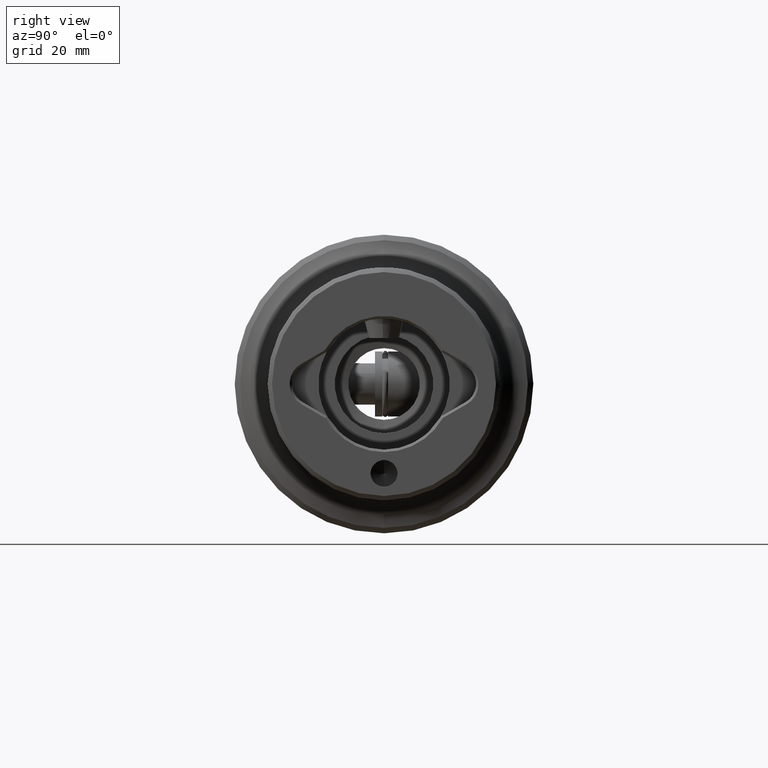
[diagram: clean part render]
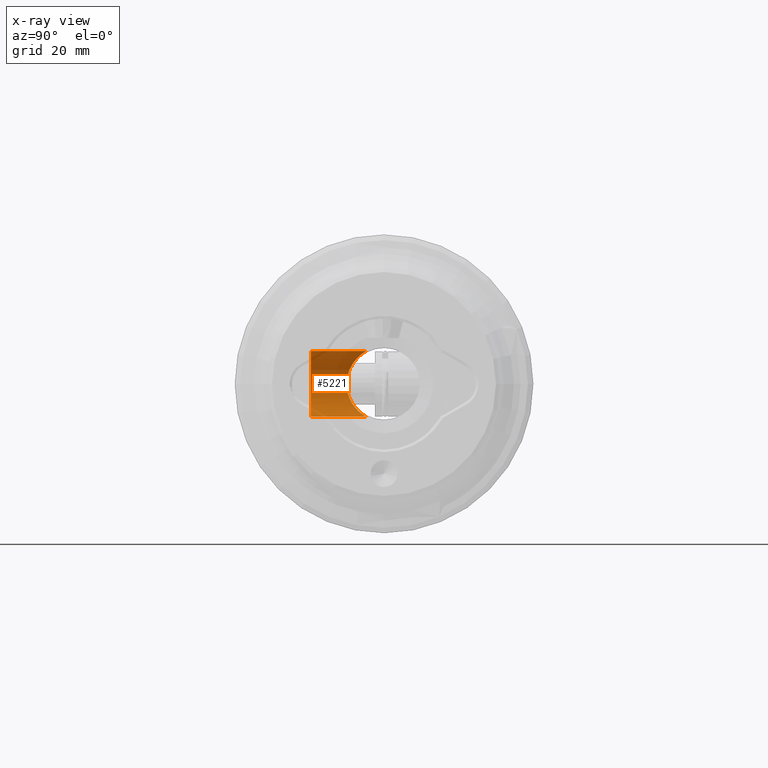
[diagram: x-ray — body ghosted, one internal face saturated and labeled with its STEP entity id]
A machine part, right view, then the same camera in x-ray: the body is ghosted and one INTERNAL B-rep face — a face not visible from any outside direction — is saturated and labeled: STEP entity #5221.
In plain terms, the highlighted cylindrical surface (edge-blend (fillet) strip) has radius 5.5 mm, axis along (0, 1, 0).
Its self-contained STEP definition (entity closure, byte-faithful):
#117 = CARTESIAN_POINT ( 'NONE',  ( 17.79813937552080100, -5.559439851179281100, -2.875431218499993100 ) ) ;
#139 = CARTESIAN_POINT ( 'NONE',  ( 22.50000000000002100, -2.968585521759487600, -5.499999999999996400 ) ) ;
#254 = VERTEX_POINT ( 'NONE', #2170 ) ;
#284 = LINE ( 'NONE', #1706, #2318 ) ;
#341 = CARTESIAN_POINT ( 'NONE',  ( 22.50000000000002100, -2.968585521759492500, 5.499999999999996400 ) ) ;
#357 = CARTESIAN_POINT ( 'NONE',  ( 19.73451661168407200, -4.052523269265991600, 4.765791319017613300 ) ) ;
#401 = DIRECTION ( 'NONE',  ( 7.788848799642570100E-017, 1.000000000000000000, -0.0000000000000000000 ) ) ;
#478 = DIRECTION ( 'NONE',  ( -0.0000000000000000000, 1.000000000000000000, -0.0000000000000000000 ) ) ;
#539 = CARTESIAN_POINT ( 'NONE',  ( 18.43023007951203200, -5.035227502066527800, -3.714919097176724100 ) ) ;
#611 = AXIS2_PLACEMENT_3D ( 'NONE', #764, #1157, #1142 ) ;
#620 = VECTOR ( 'NONE', #478, 1000.000000000000000 ) ;
#755 = CARTESIAN_POINT ( 'NONE',  ( 22.50000000000002100, -2.968585521759492500, 5.499999999999996400 ) ) ;
#764 = CARTESIAN_POINT ( 'NONE',  ( 22.50000000000002100, -24.99999999999999300, 0.0000000000000000000 ) ) ;
#774 = CARTESIAN_POINT ( 'NONE',  ( 18.92078485910568700, -4.647682556117574700, 4.189755447705890000 ) ) ;
#917 = CARTESIAN_POINT ( 'NONE',  ( 17.01070933514452600, -6.240570019570946600, 0.3941958841232609500 ) ) ;
#925 = EDGE_CURVE ( 'NONE', #4412, #3408, #4574, .T. ) ;
#940 = CARTESIAN_POINT ( 'NONE',  ( 19.17499369859254400, -4.453066222261169200, -4.394067642282543300 ) ) ;
#1072 = ORIENTED_EDGE ( 'NONE', *, *, #1303, .F. ) ;
#1142 = DIRECTION ( 'NONE',  ( 0.0000000000000000000, 0.0000000000000000000, 1.000000000000000000 ) ) ;
#1157 = DIRECTION ( 'NONE',  ( -0.0000000000000000000, 1.000000000000000000, -0.0000000000000000000 ) ) ;
#1164 = CARTESIAN_POINT ( 'NONE',  ( 18.20639687075059900, -5.218734047157114200, 3.455053424839373800 ) ) ;
#1303 = EDGE_CURVE ( 'NONE', #254, #4877, #284, .T. ) ;
#1325 = CARTESIAN_POINT ( 'NONE',  ( 16.99952595793401500, -6.250417156946230800, -0.3810626840649784500 ) ) ;
#1342 = CARTESIAN_POINT ( 'NONE',  ( 20.03016774344164800, -3.853372089328281500, -4.926018462572985300 ) ) ;
#1381 = CYLINDRICAL_SURFACE ( 'NONE', #611, 5.499999999999996400 ) ;
#1415 = AXIS2_PLACEMENT_3D ( 'NONE', #2850, #401, #3276 ) ;
#1502 = VERTEX_POINT ( 'NONE', #4815 ) ;
#1576 = CARTESIAN_POINT ( 'NONE',  ( 17.62391623792265000, -5.708137917200610400, 2.571229261259984500 ) ) ;
#1706 = CARTESIAN_POINT ( 'NONE',  ( 22.50000000000002100, -24.99999999999999300, 5.499999999999996400 ) ) ;
#1723 = CARTESIAN_POINT ( 'NONE',  ( 17.16179575486103900, -6.108072473828588800, -1.338016131452961700 ) ) ;
#1739 = CARTESIAN_POINT ( 'NONE',  ( 20.98840085951419700, -3.313852756217088300, -5.301340569490864000 ) ) ;
#1820 = CIRCLE ( 'NONE', #2284, 5.499999999999998200 ) ;
#1969 = CARTESIAN_POINT ( 'NONE',  ( 21.72840660560430600, -3.061552222554091400, 5.448957721345198700 ) ) ;
#1981 = CARTESIAN_POINT ( 'NONE',  ( 17.20534922825095600, -6.069949444868997900, 1.537648768267815000 ) ) ;
#2114 = DIRECTION ( 'NONE',  ( -0.0000000000000000000, 1.000000000000000000, -0.0000000000000000000 ) ) ;
#2138 = CARTESIAN_POINT ( 'NONE',  ( 17.32798686933949000, -5.963337105852096100, -1.880403471588122200 ) ) ;
#2160 = CARTESIAN_POINT ( 'NONE',  ( 21.72198202960886000, -3.063097449970663400, -5.448094339216806000 ) ) ;
#2170 = CARTESIAN_POINT ( 'NONE',  ( 22.50000000000002100, -12.25000000000001100, 5.499999999999997300 ) ) ;
#2284 = AXIS2_PLACEMENT_3D ( 'NONE', #2311, #5213, #2742 ) ;
#2311 = CARTESIAN_POINT ( 'NONE',  ( 22.50000000000002100, -12.25000000000001100, 0.0000000000000000000 ) ) ;
#2318 = VECTOR ( 'NONE', #2114, 1000.000000000000000 ) ;
#2383 = CARTESIAN_POINT ( 'NONE',  ( 20.99708764666438700, -3.310107001334938700, 5.303629358372345900 ) ) ;
#2570 = CARTESIAN_POINT ( 'NONE',  ( 17.61996947286882400, -5.711516721789283900, -2.563549446299750100 ) ) ;
#2584 = CARTESIAN_POINT ( 'NONE',  ( 22.50000000000002100, -2.968585521759487600, -5.499999999999996400 ) ) ;
#2586 = CARTESIAN_POINT ( 'NONE',  ( 22.30380521253791300, -2.968585521759485900, -5.499999999999995600 ) ) ;
#2704 = EDGE_LOOP ( 'NONE', ( #5190, #3145, #5322, #1072, #3262 ) ) ;
#2732 = FACE_OUTER_BOUND ( 'NONE', #2704, .T. ) ;
#2742 = DIRECTION ( 'NONE',  ( -1.000000000000000000, 0.0000000000000000000, 0.0000000000000000000 ) ) ;
#2753 = CARTESIAN_POINT ( 'NONE',  ( 22.50000000000002100, -12.25000000000001100, -5.499999999999997300 ) ) ;
#2814 = CARTESIAN_POINT ( 'NONE',  ( 20.03139221479480600, -3.852382000542591300, 4.926893865577914900 ) ) ;
#2850 = CARTESIAN_POINT ( 'NONE',  ( 22.50000000000002100, -12.25000000000001100, 0.0000000000000000000 ) ) ;
#2932 = CARTESIAN_POINT ( 'NONE',  ( 22.50000000000002100, -24.99999999999999300, -5.499999999999996400 ) ) ;
#2996 = CARTESIAN_POINT ( 'NONE',  ( 18.20605267026915500, -5.218990496001592500, -3.455085288940015000 ) ) ;
#3145 = ORIENTED_EDGE ( 'NONE', *, *, #925, .T. ) ;
#3233 = CARTESIAN_POINT ( 'NONE',  ( 19.18026696988816600, -4.449232952780344700, 4.397730991802412800 ) ) ;
#3262 = ORIENTED_EDGE ( 'NONE', *, *, #4791, .F. ) ;
#3276 = DIRECTION ( 'NONE',  ( -1.000000000000000000, 0.0000000000000000000, 0.0000000000000000000 ) ) ;
#3382 = CARTESIAN_POINT ( 'NONE',  ( 17.05217417009686900, -6.204128338361314800, 0.7803179642745171600 ) ) ;
#3404 = CARTESIAN_POINT ( 'NONE',  ( 18.91440274224028100, -4.652633285217363300, -4.184153846289945900 ) ) ;
#3408 = VERTEX_POINT ( 'NONE', #2584 ) ;
#3452 = CIRCLE ( 'NONE', #1415, 5.499999999999998200 ) ;
#3640 = CARTESIAN_POINT ( 'NONE',  ( 18.43352662869847700, -5.032531946956424000, 3.718686065922181000 ) ) ;
#3683 = B_SPLINE_CURVE_WITH_KNOTS ( 'NONE', 3,
 ( #755, #4845, #4440, #1969, #4867, #2383, #5282, #2814, #357, #3233, #774, #3640, #1164, #4052, #1576, #4456, #1981, #4434, #3382, #917, #3800, #1325, #4197, #1723, #4611, #2138, #5036, #2570, #117, #2996, #539, #3404, #940, #3814, #1342, #4222, #1739, #4630, #2160, #5061, #2586, #139 ),
 .UNSPECIFIED., .F., .F.,
 ( 4, 2, 2, 2, 2, 2, 2, 2, 2, 2, 2, 2, 2, 2, 2, 2, 2, 2, 2, 2, 4 ),
 ( 0.0000000000000000000, 0.0005833021464590243300, 0.001166604292918048700, 0.002333208585836097300, 0.003499812878754146000, 0.004666417171672194600, 0.005833021464590244600, 0.006999625757508293700, 0.008166230050426343700, 0.008749532196885368200, 0.009332834343344392800, 0.01049943863626244200, 0.01108274078272146600, 0.01166604292918049100, 0.01283264722209854200, 0.01399925151501659300, 0.01516585580793464200, 0.01633246010085269100, 0.01749906439377074000, 0.01808236654022975900, 0.01866566868668877900 ),
 .UNSPECIFIED. ) ;
#3800 = CARTESIAN_POINT ( 'NONE',  ( 17.00024329250607400, -6.249785902631076700, 0.2007038179320719500 ) ) ;
#3814 = CARTESIAN_POINT ( 'NONE',  ( 19.73614211455361200, -4.051301307776091300, -4.767031249992975000 ) ) ;
#4052 = CARTESIAN_POINT ( 'NONE',  ( 17.80318710571652500, -5.555196539040183600, 2.883118214032701400 ) ) ;
#4197 = CARTESIAN_POINT ( 'NONE',  ( 17.04154012812297800, -6.213355237211407800, -0.7759270265308385600 ) ) ;
#4222 = CARTESIAN_POINT ( 'NONE',  ( 20.65604669585935200, -3.485479718938169200, -5.192837902466705700 ) ) ;
#4412 = VERTEX_POINT ( 'NONE', #2753 ) ;
#4434 = CARTESIAN_POINT ( 'NONE',  ( 17.08355744343181800, -6.176565780085541100, 0.9742036048647889600 ) ) ;
#4440 = CARTESIAN_POINT ( 'NONE',  ( 22.10834593304650400, -2.988501054594431900, 5.489362777875164100 ) ) ;
#4456 = CARTESIAN_POINT ( 'NONE',  ( 17.32298864575030700, -5.967251644519352600, 1.893664755632301600 ) ) ;
#4574 = LINE ( 'NONE', #2932, #620 ) ;
#4611 = CARTESIAN_POINT ( 'NONE',  ( 17.21122752016895800, -6.064881198978754100, -1.521355545645774600 ) ) ;
#4630 = CARTESIAN_POINT ( 'NONE',  ( 21.53563286531208800, -3.116657023569983800, -5.418005350527658400 ) ) ;
#4791 = EDGE_CURVE ( 'NONE', #1502, #254, #1820, .T. ) ;
#4815 = CARTESIAN_POINT ( 'NONE',  ( 17.00000000000002100, -12.25000000000001100, 0.0000000000000000000 ) ) ;
#4845 = CARTESIAN_POINT ( 'NONE',  ( 22.30200203237733800, -2.968585521759492500, 5.499999999999995600 ) ) ;
#4867 = CARTESIAN_POINT ( 'NONE',  ( 21.54067753311485900, -3.115154939981332700, 5.418856695164472500 ) ) ;
#4877 = VERTEX_POINT ( 'NONE', #341 ) ;
#4897 = EDGE_CURVE ( 'NONE', #4877, #3408, #3683, .T. ) ;
#5036 = CARTESIAN_POINT ( 'NONE',  ( 17.39571644457797800, -5.904639442297771300, -2.056796128250701000 ) ) ;
#5061 = CARTESIAN_POINT ( 'NONE',  ( 22.10472184108930800, -2.988895924698124200, -5.489152855254253900 ) ) ;
#5190 = ORIENTED_EDGE ( 'NONE', *, *, #5278, .F. ) ;
#5213 = DIRECTION ( 'NONE',  ( 7.788848799642570100E-017, 1.000000000000000000, -0.0000000000000000000 ) ) ;
#5221 = ADVANCED_FACE ( 'NONE', ( #2732 ), #1381, .F. ) ;
#5278 = EDGE_CURVE ( 'NONE', #4412, #1502, #3452, .T. ) ;
#5282 = CARTESIAN_POINT ( 'NONE',  ( 20.66446127288209300, -3.480808110148911000, 5.196066314154908400 ) ) ;
#5322 = ORIENTED_EDGE ( 'NONE', *, *, #4897, .F. ) ;